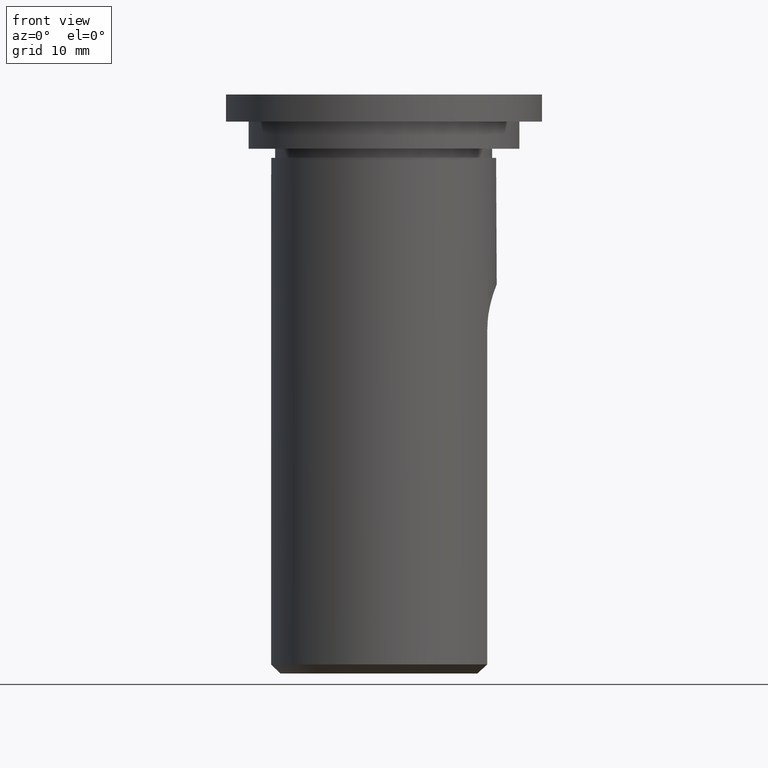
[diagram: clean part render]
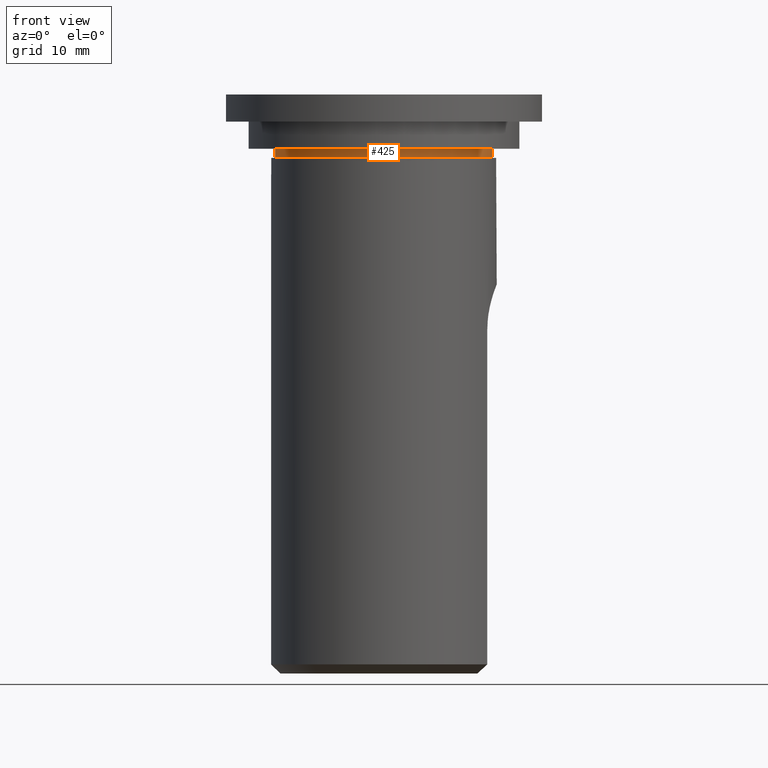
[diagram: same view with one face highlighted and labeled with its STEP entity id]
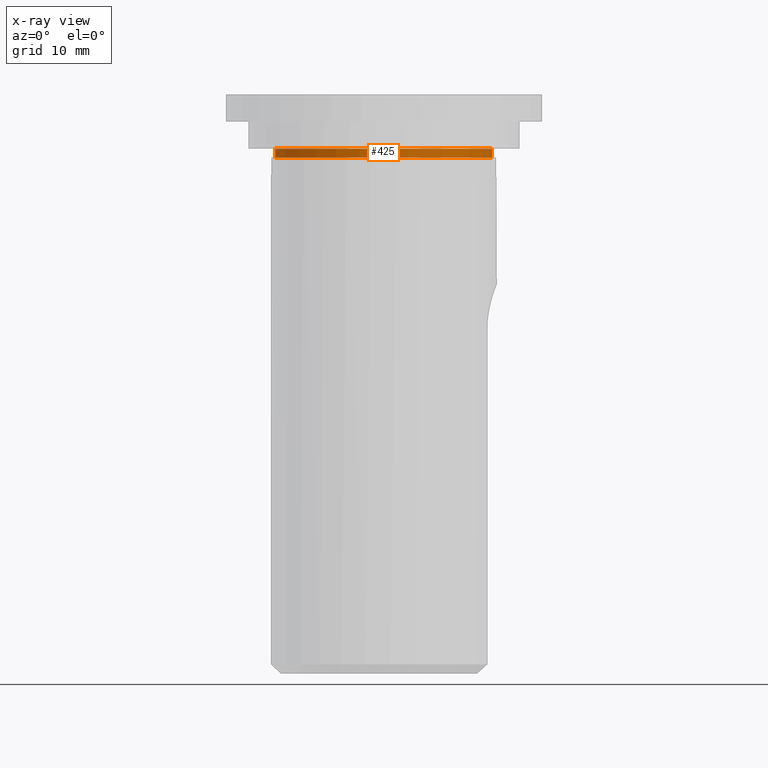
[diagram: x-ray of the same camera — body ghosted, the highlighted face saturated]
A machine part, front view. The second image highlights one B-rep face of the part: STEP entity #425.
The next image is the same camera in x-ray: the body ghosted, the highlighted face saturated — about 0% of this face is hidden behind the body in this view.
In plain terms, the highlighted cylindrical surface (partial cylindrical patch) has radius 12 mm, axis along (0, 0, -1).
Its self-contained STEP definition (entity closure, byte-faithful):
#59=FACE_OUTER_BOUND('',#89,.T.);
#89=EDGE_LOOP('',(#375,#376,#377,#378));
#123=LINE('',#806,#150);
#125=LINE('',#810,#152);
#150=VECTOR('',#558,10.);
#152=VECTOR('',#560,10.);
#176=CIRCLE('',#479,12.);
#177=CIRCLE('',#481,12.);
#209=VERTEX_POINT('',#804);
#210=VERTEX_POINT('',#805);
#211=VERTEX_POINT('',#807);
#212=VERTEX_POINT('',#809);
#261=EDGE_CURVE('',#209,#210,#123,.T.);
#263=EDGE_CURVE('',#212,#211,#125,.T.);
#273=EDGE_CURVE('',#211,#209,#176,.T.);
#274=EDGE_CURVE('',#212,#210,#177,.T.);
#375=ORIENTED_EDGE('',*,*,#261,.T.);
#376=ORIENTED_EDGE('',*,*,#274,.F.);
#377=ORIENTED_EDGE('',*,*,#263,.T.);
#378=ORIENTED_EDGE('',*,*,#273,.T.);
#404=CYLINDRICAL_SURFACE('',#480,12.);
#425=ADVANCED_FACE('',(#59),#404,.T.);
#479=AXIS2_PLACEMENT_3D('',#830,#585,#586);
#480=AXIS2_PLACEMENT_3D('',#831,#587,#588);
#481=AXIS2_PLACEMENT_3D('',#832,#589,#590);
#558=DIRECTION('',(0.,0.,-1.));
#560=DIRECTION('',(0.,0.,1.));
#585=DIRECTION('center_axis',(0.,0.,-1.));
#586=DIRECTION('ref_axis',(1.,0.,0.));
#587=DIRECTION('center_axis',(0.,0.,-1.));
#588=DIRECTION('ref_axis',(-6.12323399573677E-17,-1.,0.));
#589=DIRECTION('center_axis',(0.,0.,-1.));
#590=DIRECTION('ref_axis',(1.,0.,0.));
#804=CARTESIAN_POINT('',(-2.43669858620224,11.75,-6.00000000000001));
#805=CARTESIAN_POINT('',(-2.43669858620224,11.75,-7.));
#806=CARTESIAN_POINT('',(-2.43669858620224,11.75,-6.5));
#807=CARTESIAN_POINT('',(2.43669858620224,11.75,-6.00000000000001));
#809=CARTESIAN_POINT('',(2.43669858620224,11.75,-7.));
#810=CARTESIAN_POINT('',(2.43669858620224,11.75,-6.5));
#830=CARTESIAN_POINT('Origin',(0.,0.,-6.00000000000001));
#831=CARTESIAN_POINT('Origin',(0.,0.,-6.50000000000001));
#832=CARTESIAN_POINT('Origin',(0.,0.,-7.));